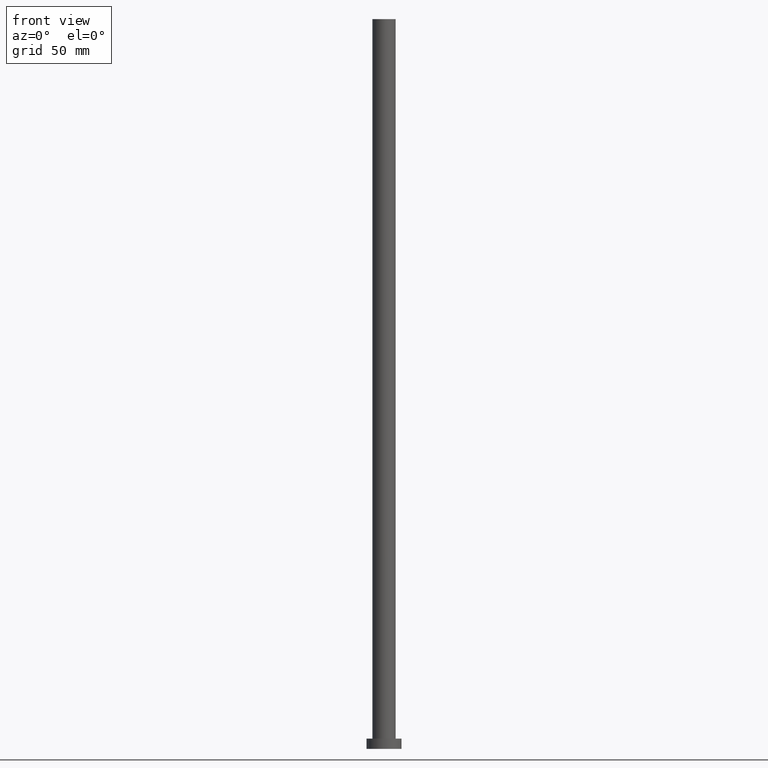
[diagram: clean part render]
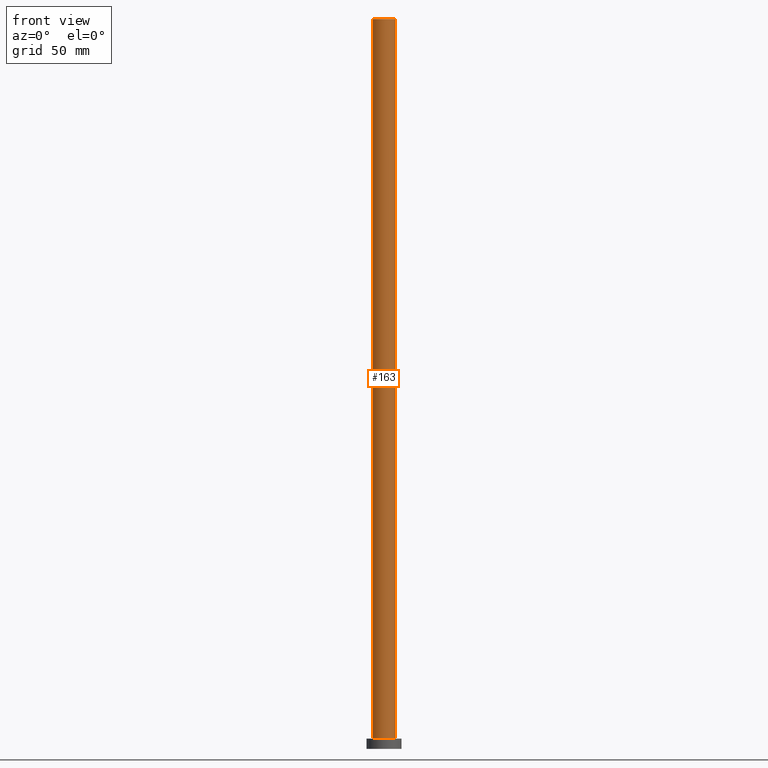
[diagram: same view with one face highlighted and labeled with its STEP entity id]
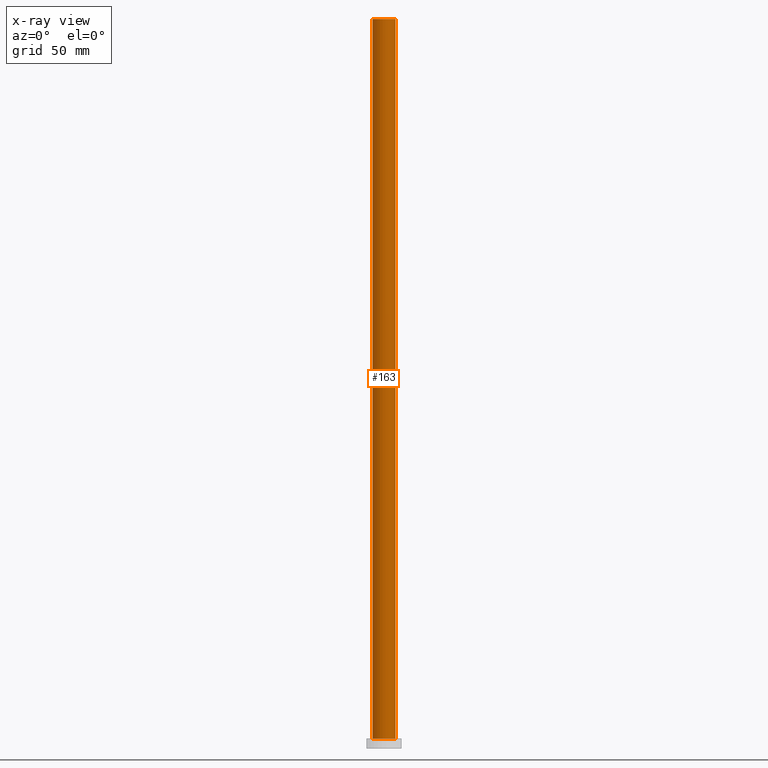
[diagram: x-ray of the same camera — body ghosted, the highlighted face saturated]
A machine part, front view. The second image highlights one B-rep face of the part: STEP entity #163.
The next image is the same camera in x-ray: the body ghosted, the highlighted face saturated — about 0% of this face is hidden behind the body in this view.
In plain terms, the highlighted cylindrical surface (edge-blend (fillet) strip) has radius 8 mm, axis along (-0, -0, -1).
Its self-contained STEP definition (entity closure, byte-faithful):
#3 = CARTESIAN_POINT ( 'NONE',  ( 8.000000000000000000, 9.797174393178825657E-16, 500.0000000000000000 ) ) ;
#4 = VERTEX_POINT ( 'NONE', #94 ) ;
#5 = DIRECTION ( 'NONE',  ( -1.000000000000000000, 0.000000000000000000, 0.000000000000000000 ) ) ;
#16 = CARTESIAN_POINT ( 'NONE',  ( 0.000000000000000000, 0.000000000000000000, 500.0000000000000000 ) ) ;
#17 = CARTESIAN_POINT ( 'NONE',  ( -8.000000000000000000, 0.000000000000000000, 7.000000000000000000 ) ) ;
#21 = EDGE_CURVE ( 'NONE', #167, #112, #229, .T. ) ;
#25 = CARTESIAN_POINT ( 'NONE',  ( 8.000000000000000000, 9.797174393178825657E-16, 500.0000000000000000 ) ) ;
#37 = CARTESIAN_POINT ( 'NONE',  ( 0.000000000000000000, 0.000000000000000000, 7.000000000000000000 ) ) ;
#47 = AXIS2_PLACEMENT_3D ( 'NONE', #37, #103, #114 ) ;
#52 = VECTOR ( 'NONE', #231, 1000.000000000000000 ) ;
#64 = ORIENTED_EDGE ( 'NONE', *, *, #120, .T. ) ;
#72 = ORIENTED_EDGE ( 'NONE', *, *, #159, .T. ) ;
#78 = CIRCLE ( 'NONE', #47, 8.000000000000000000 ) ;
#94 = CARTESIAN_POINT ( 'NONE',  ( -8.000000000000000000, 0.000000000000000000, 500.0000000000000000 ) ) ;
#103 = DIRECTION ( 'NONE',  ( 0.000000000000000000, 0.000000000000000000, 1.000000000000000000 ) ) ;
#104 = AXIS2_PLACEMENT_3D ( 'NONE', #213, #189, #5 ) ;
#112 = VERTEX_POINT ( 'NONE', #246 ) ;
#114 = DIRECTION ( 'NONE',  ( 1.000000000000000000, 0.000000000000000000, 0.000000000000000000 ) ) ;
#116 = DIRECTION ( 'NONE',  ( -0.000000000000000000, -0.000000000000000000, -1.000000000000000000 ) ) ;
#120 = EDGE_CURVE ( 'NONE', #179, #112, #78, .T. ) ;
#122 = ORIENTED_EDGE ( 'NONE', *, *, #243, .F. ) ;
#124 = FACE_OUTER_BOUND ( 'NONE', #160, .T. ) ;
#143 = CARTESIAN_POINT ( 'NONE',  ( -8.000000000000000000, 0.000000000000000000, 500.0000000000000000 ) ) ;
#150 = DIRECTION ( 'NONE',  ( 1.000000000000000000, 0.000000000000000000, 0.000000000000000000 ) ) ;
#159 = EDGE_CURVE ( 'NONE', #4, #179, #210, .T. ) ;
#160 = EDGE_LOOP ( 'NONE', ( #201, #122, #72, #64 ) ) ;
#163 = ADVANCED_FACE ( 'NONE', ( #124 ), #168, .T. ) ;
#167 = VERTEX_POINT ( 'NONE', #25 ) ;
#168 = CYLINDRICAL_SURFACE ( 'NONE', #104, 8.000000000000000000 ) ;
#179 = VERTEX_POINT ( 'NONE', #17 ) ;
#189 = DIRECTION ( 'NONE',  ( -0.000000000000000000, -0.000000000000000000, -1.000000000000000000 ) ) ;
#195 = AXIS2_PLACEMENT_3D ( 'NONE', #16, #199, #150 ) ;
#199 = DIRECTION ( 'NONE',  ( 0.000000000000000000, 0.000000000000000000, 1.000000000000000000 ) ) ;
#201 = ORIENTED_EDGE ( 'NONE', *, *, #21, .F. ) ;
#210 = LINE ( 'NONE', #143, #52 ) ;
#213 = CARTESIAN_POINT ( 'NONE',  ( 0.000000000000000000, 0.000000000000000000, 500.0000000000000000 ) ) ;
#229 = LINE ( 'NONE', #3, #240 ) ;
#231 = DIRECTION ( 'NONE',  ( -0.000000000000000000, -0.000000000000000000, -1.000000000000000000 ) ) ;
#236 = CIRCLE ( 'NONE', #195, 8.000000000000000000 ) ;
#240 = VECTOR ( 'NONE', #116, 1000.000000000000000 ) ;
#243 = EDGE_CURVE ( 'NONE', #4, #167, #236, .T. ) ;
#246 = CARTESIAN_POINT ( 'NONE',  ( 8.000000000000000000, 9.797174393178825657E-16, 7.000000000000000000 ) ) ;